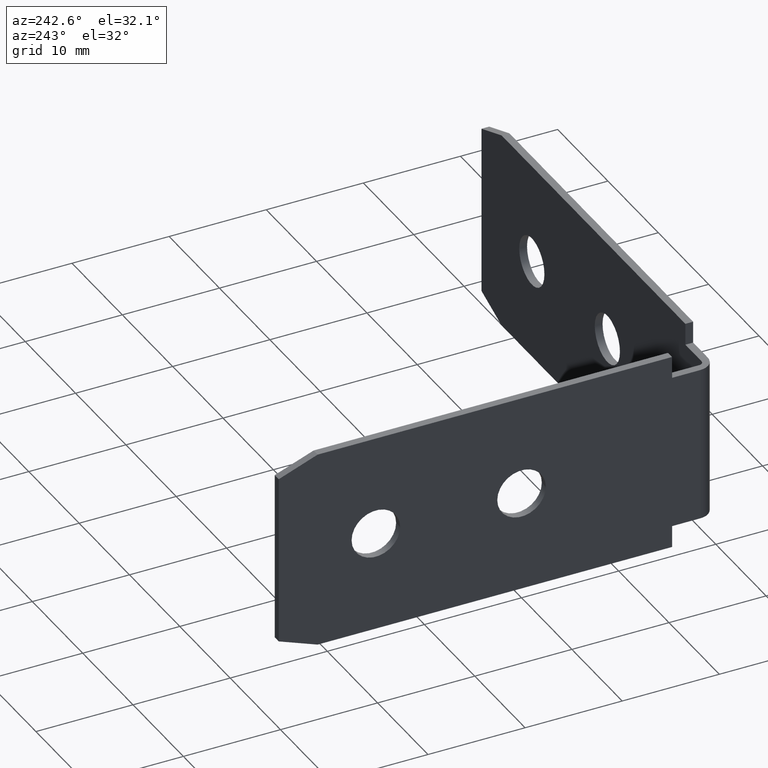
[diagram: clean part render]
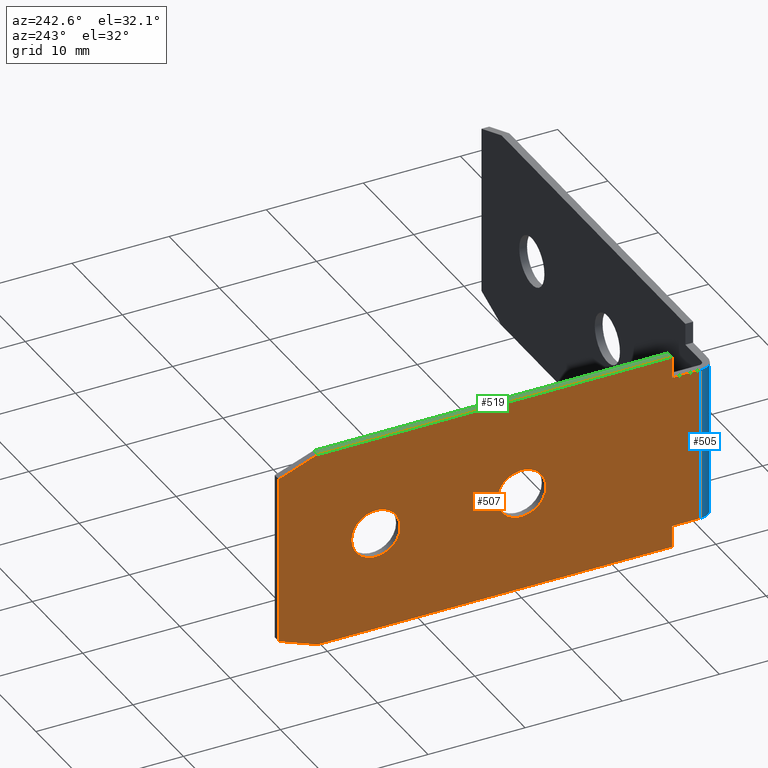
[diagram: same view with three faces highlighted in distinct colors, each labeled with its STEP entity id]
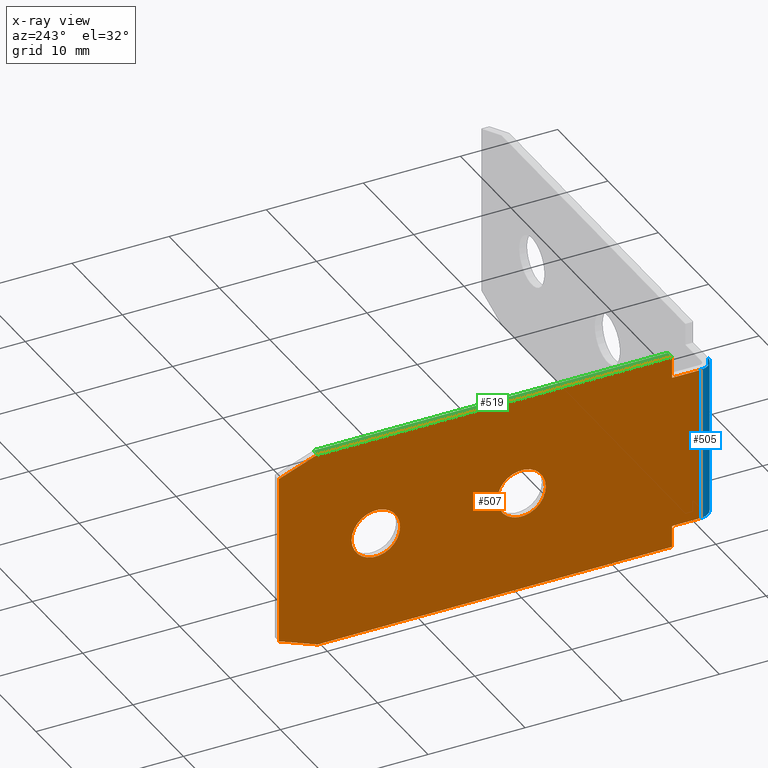
[diagram: x-ray of the same camera — body ghosted, the three highlighted faces saturated]
A machine part, auxiliary view with three faces highlighted in distinct colors.
The next image is the same camera in x-ray (body ghosted, the three faces saturated) — at least one of them is partly hidden behind the body in this view.
Their STEP definitions:

[orange] entity #507 — the highlighted planar face has unit normal (-1, 0, 0).
#15=FACE_BOUND('',#72,.T.);
#16=FACE_BOUND('',#73,.T.);
#24=PLANE('',#559);
#45=FACE_OUTER_BOUND('',#71,.T.);
#71=EDGE_LOOP('',(#367,#368,#369,#370,#371,#372,#373,#374,#375,#376));
#72=EDGE_LOOP('',(#377));
#73=EDGE_LOOP('',(#378));
#104=LINE('',#739,#164);
#105=LINE('',#742,#165);
#111=LINE('',#756,#171);
#112=LINE('',#758,#172);
#113=LINE('',#760,#173);
#114=LINE('',#762,#174);
#115=LINE('',#764,#175);
#116=LINE('',#766,#176);
#117=LINE('',#768,#177);
#118=LINE('',#769,#178);
#164=VECTOR('',#601,10.);
#165=VECTOR('',#604,10.);
#171=VECTOR('',#614,10.);
#172=VECTOR('',#615,10.);
#173=VECTOR('',#616,10.);
#174=VECTOR('',#617,10.);
#175=VECTOR('',#618,10.);
#176=VECTOR('',#619,10.);
#177=VECTOR('',#620,10.);
#178=VECTOR('',#621,10.);
#226=CIRCLE('',#560,2.5);
#227=CIRCLE('',#561,2.5);
#235=VERTEX_POINT('',#732);
#238=VERTEX_POINT('',#737);
#239=VERTEX_POINT('',#741);
#245=VERTEX_POINT('',#755);
#246=VERTEX_POINT('',#757);
#247=VERTEX_POINT('',#759);
#248=VERTEX_POINT('',#761);
#249=VERTEX_POINT('',#763);
#250=VERTEX_POINT('',#765);
#251=VERTEX_POINT('',#767);
#252=VERTEX_POINT('',#770);
#253=VERTEX_POINT('',#772);
#286=EDGE_CURVE('',#238,#235,#104,.T.);
#287=EDGE_CURVE('',#239,#235,#105,.T.);
#294=EDGE_CURVE('',#238,#245,#111,.T.);
#295=EDGE_CURVE('',#245,#246,#112,.T.);
#296=EDGE_CURVE('',#247,#246,#113,.T.);
#297=EDGE_CURVE('',#247,#248,#114,.T.);
#298=EDGE_CURVE('',#249,#248,#115,.T.);
#299=EDGE_CURVE('',#249,#250,#116,.T.);
#300=EDGE_CURVE('',#251,#250,#117,.T.);
#301=EDGE_CURVE('',#251,#239,#118,.T.);
#302=EDGE_CURVE('',#252,#252,#226,.T.);
#303=EDGE_CURVE('',#253,#253,#227,.T.);
#367=ORIENTED_EDGE('',*,*,#286,.F.);
#368=ORIENTED_EDGE('',*,*,#294,.T.);
#369=ORIENTED_EDGE('',*,*,#295,.T.);
#370=ORIENTED_EDGE('',*,*,#296,.F.);
#371=ORIENTED_EDGE('',*,*,#297,.T.);
#372=ORIENTED_EDGE('',*,*,#298,.F.);
#373=ORIENTED_EDGE('',*,*,#299,.T.);
#374=ORIENTED_EDGE('',*,*,#300,.F.);
#375=ORIENTED_EDGE('',*,*,#301,.T.);
#376=ORIENTED_EDGE('',*,*,#287,.T.);
#377=ORIENTED_EDGE('',*,*,#302,.T.);
#378=ORIENTED_EDGE('',*,*,#303,.T.);
#507=ADVANCED_FACE('',(#45,#15,#16),#24,.T.);
#559=AXIS2_PLACEMENT_3D('',#754,#612,#613);
#560=AXIS2_PLACEMENT_3D('',#771,#622,#623);
#561=AXIS2_PLACEMENT_3D('',#773,#624,#625);
#601=DIRECTION('',(0.,0.,-1.));
#604=DIRECTION('',(0.,-1.,0.));
#612=DIRECTION('center_axis',(-1.,0.,0.));
#613=DIRECTION('ref_axis',(0.,0.,1.));
#614=DIRECTION('',(0.,1.,-2.46716227694479E-16));
#615=DIRECTION('',(0.,0.,1.));
#616=DIRECTION('',(-3.94745964311167E-16,-1.,0.));
#617=DIRECTION('',(0.,0.936329177569045,-0.351123441588391));
#618=DIRECTION('',(0.,0.,1.));
#619=DIRECTION('',(0.,-0.936329177569045,-0.351123441588391));
#620=DIRECTION('',(3.94745964311167E-16,1.,0.));
#621=DIRECTION('',(0.,1.48029736616687E-15,1.));
#622=DIRECTION('center_axis',(1.,0.,0.));
#623=DIRECTION('ref_axis',(3.94745964311167E-16,1.,0.));
#624=DIRECTION('center_axis',(1.,0.,0.));
#625=DIRECTION('ref_axis',(3.94745964311167E-16,1.,0.));
#732=CARTESIAN_POINT('',(0.,1.59999999999999,-8.));
#737=CARTESIAN_POINT('',(0.,1.59999999999999,8.));
#739=CARTESIAN_POINT('',(0.,1.59999999999999,0.));
#741=CARTESIAN_POINT('',(1.83186799063151E-15,4.49999999999999,-8.));
#742=CARTESIAN_POINT('',(0.,-8.2048109266063E-15,-8.));
#754=CARTESIAN_POINT('Origin',(0.,-7.7715611723761E-15,0.));
#755=CARTESIAN_POINT('',(1.83186799063151E-15,4.49999999999999,8.));
#756=CARTESIAN_POINT('',(0.,2.24999999999999,8.));
#757=CARTESIAN_POINT('',(1.83186799063151E-15,4.49999999999999,10.25));
#758=CARTESIAN_POINT('',(0.,4.49999999999999,5.125));
#759=CARTESIAN_POINT('',(1.61815005839117E-14,41.,10.25));
#760=CARTESIAN_POINT('',(1.77635683940025E-14,45.,10.25));
#761=CARTESIAN_POINT('',(1.77635683940025E-14,45.,8.75));
#762=CARTESIAN_POINT('',(0.,26.7123287671233,15.6078767123288));
#763=CARTESIAN_POINT('',(1.77635683940025E-14,45.,-8.75));
#764=CARTESIAN_POINT('',(1.77635683940025E-14,45.,0.));
#765=CARTESIAN_POINT('',(1.61815005839117E-14,41.,-10.25));
#766=CARTESIAN_POINT('',(6.93889390390723E-17,24.7123287671233,-16.3578767123288));
#767=CARTESIAN_POINT('',(1.77635683940025E-15,4.49999999999999,-10.25));
#768=CARTESIAN_POINT('',(1.77635683940025E-14,45.,-10.25));
#769=CARTESIAN_POINT('',(0.,4.5,-4.));
#770=CARTESIAN_POINT('',(8.88178419700125E-15,17.5,-3.06161699786838E-16));
#771=CARTESIAN_POINT('Origin',(8.88178419700125E-15,20.,0.));
#772=CARTESIAN_POINT('',(1.77635683940025E-14,32.5,-3.06161699786838E-16));
#773=CARTESIAN_POINT('Origin',(1.77635683940025E-14,35.,0.));

[blue] entity #505 — the highlighted cylindrical surface (edge-blend (fillet) strip) has radius 1.6 mm, axis along (0, 0, -1).
#43=FACE_OUTER_BOUND('',#69,.T.);
#69=EDGE_LOOP('',(#355,#356,#357,#358));
#103=LINE('',#736,#163);
#104=LINE('',#739,#164);
#163=VECTOR('',#598,10.);
#164=VECTOR('',#601,10.);
#223=CIRCLE('',#555,1.6);
#224=CIRCLE('',#556,1.6);
#235=VERTEX_POINT('',#732);
#236=VERTEX_POINT('',#733);
#237=VERTEX_POINT('',#735);
#238=VERTEX_POINT('',#737);
#283=EDGE_CURVE('',#235,#236,#223,.T.);
#284=EDGE_CURVE('',#236,#237,#103,.T.);
#285=EDGE_CURVE('',#237,#238,#224,.T.);
#286=EDGE_CURVE('',#238,#235,#104,.T.);
#355=ORIENTED_EDGE('',*,*,#283,.T.);
#356=ORIENTED_EDGE('',*,*,#284,.T.);
#357=ORIENTED_EDGE('',*,*,#285,.T.);
#358=ORIENTED_EDGE('',*,*,#286,.T.);
#499=CYLINDRICAL_SURFACE('',#554,1.6);
#505=ADVANCED_FACE('',(#43),#499,.T.);
#554=AXIS2_PLACEMENT_3D('',#731,#594,#595);
#555=AXIS2_PLACEMENT_3D('',#734,#596,#597);
#556=AXIS2_PLACEMENT_3D('',#738,#599,#600);
#594=DIRECTION('center_axis',(0.,0.,-1.));
#595=DIRECTION('ref_axis',(-0.707106781186548,-0.707106781186547,0.));
#596=DIRECTION('center_axis',(0.,0.,1.));
#597=DIRECTION('ref_axis',(-0.707106781186548,-0.707106781186547,0.));
#598=DIRECTION('',(0.,0.,1.));
#599=DIRECTION('center_axis',(-2.46716227694479E-16,-2.58692812283125E-32,
-1.));
#600=DIRECTION('ref_axis',(-0.707106781186548,-0.707106781186547,0.));
#601=DIRECTION('',(0.,0.,-1.));
#731=CARTESIAN_POINT('Origin',(1.6,1.59999999999999,0.));
#732=CARTESIAN_POINT('',(0.,1.59999999999999,-8.));
#733=CARTESIAN_POINT('',(1.6,-7.49523899735828E-15,-8.));
#734=CARTESIAN_POINT('Origin',(1.6,1.59999999999999,-8.));
#735=CARTESIAN_POINT('',(1.6,-7.56431954111273E-15,8.));
#736=CARTESIAN_POINT('',(1.6,-7.49400541621981E-15,0.));
#737=CARTESIAN_POINT('',(0.,1.59999999999999,8.));
#738=CARTESIAN_POINT('Origin',(1.6,1.59999999999999,8.));
#739=CARTESIAN_POINT('',(0.,1.59999999999999,0.));

[green] entity #519 — the highlighted planar face has unit normal (0, 0, -1).
#31=PLANE('',#580);
#57=FACE_OUTER_BOUND('',#89,.T.);
#89=EDGE_LOOP('',(#439,#440,#441,#442));
#113=LINE('',#760,#173);
#126=LINE('',#792,#186);
#135=LINE('',#820,#195);
#136=LINE('',#822,#196);
#173=VECTOR('',#616,10.);
#186=VECTOR('',#639,10.);
#195=VECTOR('',#672,10.);
#196=VECTOR('',#675,10.);
#246=VERTEX_POINT('',#757);
#247=VERTEX_POINT('',#759);
#260=VERTEX_POINT('',#789);
#261=VERTEX_POINT('',#791);
#296=EDGE_CURVE('',#247,#246,#113,.T.);
#312=EDGE_CURVE('',#261,#260,#126,.T.);
#327=EDGE_CURVE('',#246,#261,#135,.T.);
#328=EDGE_CURVE('',#260,#247,#136,.T.);
#439=ORIENTED_EDGE('',*,*,#327,.T.);
#440=ORIENTED_EDGE('',*,*,#312,.T.);
#441=ORIENTED_EDGE('',*,*,#328,.T.);
#442=ORIENTED_EDGE('',*,*,#296,.T.);
#519=ADVANCED_FACE('',(#57),#31,.F.);
#580=AXIS2_PLACEMENT_3D('',#843,#691,#692);
#616=DIRECTION('',(-3.94745964311167E-16,-1.,0.));
#639=DIRECTION('',(3.26899001695185E-16,1.,0.));
#672=DIRECTION('',(1.,-3.26899001695185E-16,0.));
#675=DIRECTION('',(-1.,2.22044604925031E-16,0.));
#691=DIRECTION('center_axis',(0.,0.,-1.));
#692=DIRECTION('ref_axis',(2.22044604925031E-16,1.,0.));
#757=CARTESIAN_POINT('',(1.83186799063151E-15,4.49999999999999,10.25));
#759=CARTESIAN_POINT('',(1.61815005839117E-14,41.,10.25));
#760=CARTESIAN_POINT('',(1.77635683940025E-14,45.,10.25));
#789=CARTESIAN_POINT('',(0.800000000000014,41.,10.25));
#791=CARTESIAN_POINT('',(0.800000000000002,4.49999999999999,10.25));
#792=CARTESIAN_POINT('',(0.8,-7.94919685631612E-15,10.25));
#820=CARTESIAN_POINT('',(0.600000000000002,4.49999999999999,10.25));
#822=CARTESIAN_POINT('',(0.600000000000013,41.,10.25));
#843=CARTESIAN_POINT('Origin',(0.400000000000008,22.5,10.25));